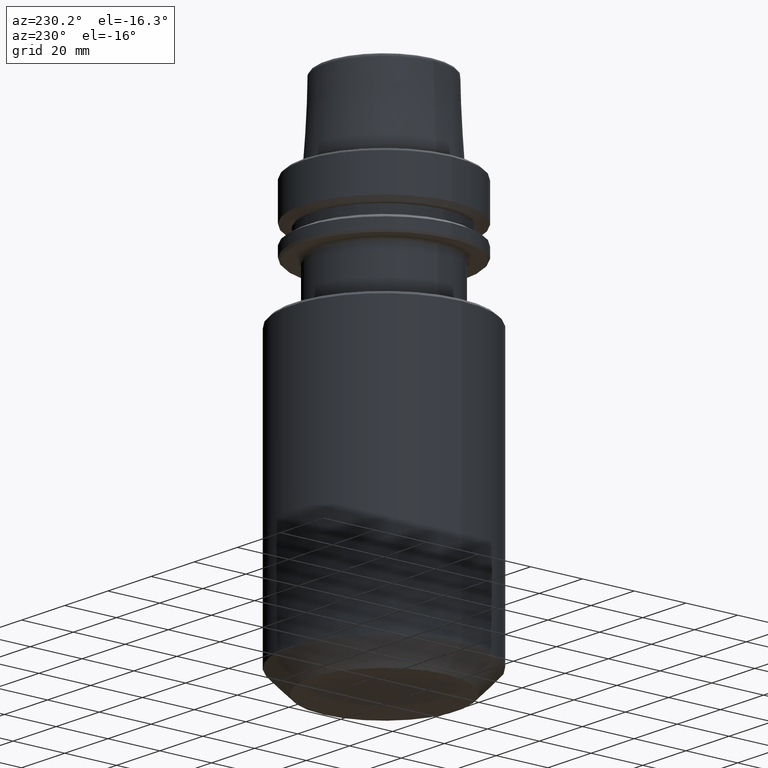
[diagram: clean part render]
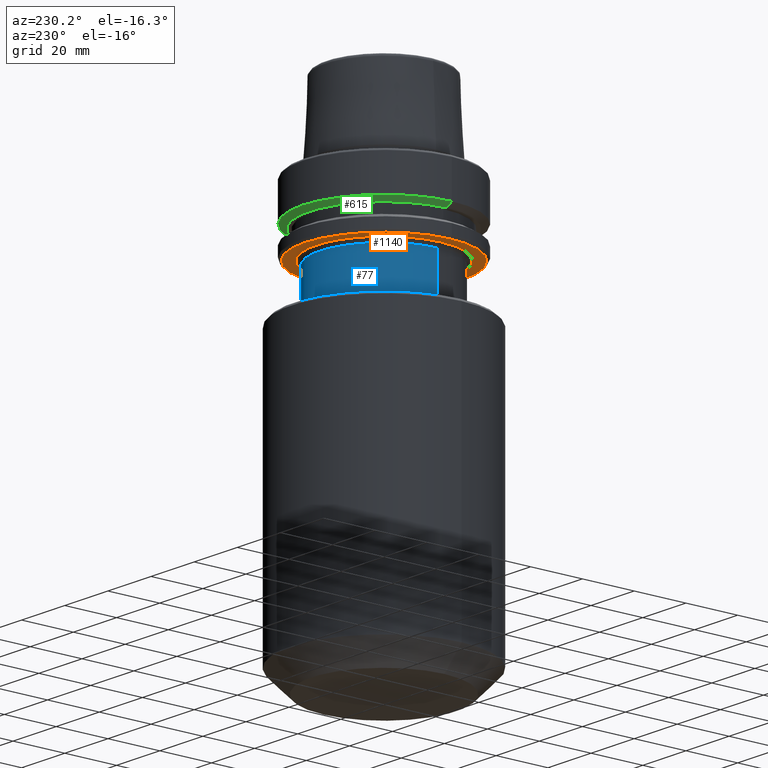
[diagram: same view with three faces highlighted in distinct colors, each labeled with its STEP entity id]
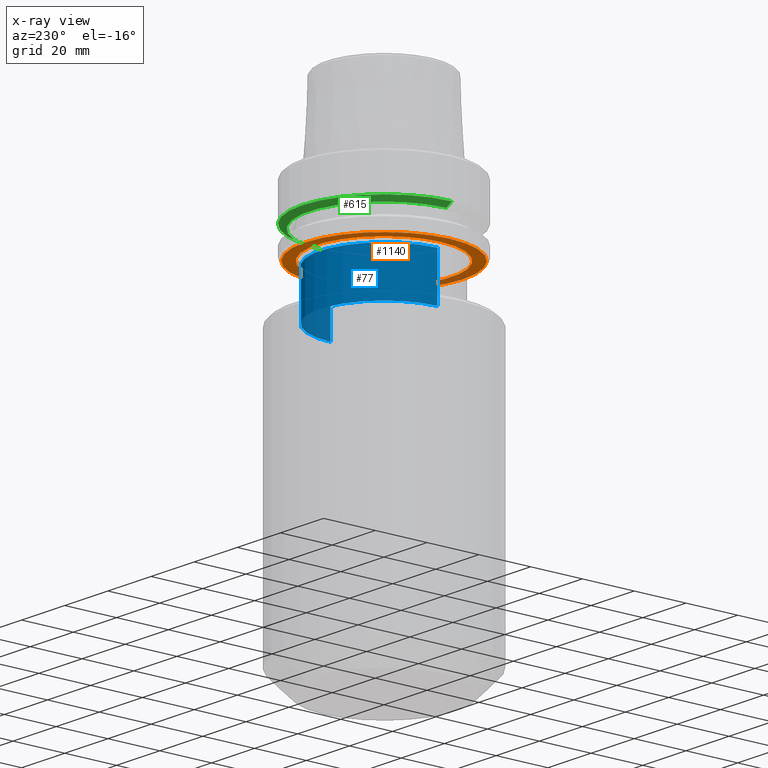
[diagram: x-ray of the same camera — body ghosted, the three highlighted faces saturated]
A machine part, auxiliary view with three faces highlighted in distinct colors.
The next image is the same camera in x-ray (body ghosted, the three faces saturated) — at least one of them is partly hidden behind the body in this view.
Their STEP definitions:

[orange] entity #1140 — the highlighted planar face has unit normal (0, -0, 1).
#28 = AXIS2_PLACEMENT_3D ( 'NONE', #75, #268, #897 ) ;
#75 = CARTESIAN_POINT ( 'NONE',  ( 0.0000000000000000000, 5.595110143410128200, -26.00000000000001100 ) ) ;
#164 = CIRCLE ( 'NONE', #1005, 30.53431457505076800 ) ;
#200 = VERTEX_POINT ( 'NONE', #1365 ) ;
#205 = CARTESIAN_POINT ( 'NONE',  ( -30.53431457505076800, 3.756694181974139400E-015, -26.00000000000001100 ) ) ;
#268 = DIRECTION ( 'NONE',  ( 0.0000000000000000000, -0.0000000000000000000, 1.000000000000000000 ) ) ;
#341 = DIRECTION ( 'NONE',  ( -0.0000000000000000000, -0.0000000000000000000, 1.000000000000000000 ) ) ;
#367 = DIRECTION ( 'NONE',  ( 1.000000000000000000, 0.0000000000000000000, 0.0000000000000000000 ) ) ;
#419 = VERTEX_POINT ( 'NONE', #205 ) ;
#433 = DIRECTION ( 'NONE',  ( -0.0000000000000000000, -0.0000000000000000000, 1.000000000000000000 ) ) ;
#452 = CARTESIAN_POINT ( 'NONE',  ( 0.0000000000000000000, 0.0000000000000000000, -26.00000000000001100 ) ) ;
#459 = EDGE_CURVE ( 'NONE', #812, #419, #164, .T. ) ;
#507 = AXIS2_PLACEMENT_3D ( 'NONE', #1086, #341, #977 ) ;
#509 = EDGE_CURVE ( 'NONE', #419, #812, #1320, .T. ) ;
#525 = EDGE_LOOP ( 'NONE', ( #1084, #994 ) ) ;
#526 = DIRECTION ( 'NONE',  ( 1.000000000000000000, 0.0000000000000000000, 0.0000000000000000000 ) ) ;
#565 = FACE_OUTER_BOUND ( 'NONE', #1203, .T. ) ;
#589 = EDGE_CURVE ( 'NONE', #660, #200, #665, .T. ) ;
#612 = CIRCLE ( 'NONE', #507, 26.25000000000000400 ) ;
#660 = VERTEX_POINT ( 'NONE', #747 ) ;
#665 = CIRCLE ( 'NONE', #1072, 26.25000000000000400 ) ;
#669 = DIRECTION ( 'NONE',  ( -0.0000000000000000000, -0.0000000000000000000, 1.000000000000000000 ) ) ;
#747 = CARTESIAN_POINT ( 'NONE',  ( -26.25000000000000400, 3.214697847761802400E-015, -26.00000000000001100 ) ) ;
#812 = VERTEX_POINT ( 'NONE', #1316 ) ;
#897 = DIRECTION ( 'NONE',  ( 1.000000000000000000, 0.0000000000000000000, 0.0000000000000000000 ) ) ;
#910 = PLANE ( 'NONE',  #28 ) ;
#913 = ORIENTED_EDGE ( 'NONE', *, *, #509, .F. ) ;
#951 = FACE_BOUND ( 'NONE', #525, .T. ) ;
#977 = DIRECTION ( 'NONE',  ( 1.000000000000000000, 0.0000000000000000000, 0.0000000000000000000 ) ) ;
#978 = CARTESIAN_POINT ( 'NONE',  ( 0.0000000000000000000, 0.0000000000000000000, -26.00000000000001100 ) ) ;
#994 = ORIENTED_EDGE ( 'NONE', *, *, #589, .T. ) ;
#1005 = AXIS2_PLACEMENT_3D ( 'NONE', #978, #1085, #1080 ) ;
#1061 = CARTESIAN_POINT ( 'NONE',  ( 0.0000000000000000000, 0.0000000000000000000, -26.00000000000001100 ) ) ;
#1072 = AXIS2_PLACEMENT_3D ( 'NONE', #1061, #433, #526 ) ;
#1080 = DIRECTION ( 'NONE',  ( 1.000000000000000000, 0.0000000000000000000, 0.0000000000000000000 ) ) ;
#1084 = ORIENTED_EDGE ( 'NONE', *, *, #1324, .T. ) ;
#1085 = DIRECTION ( 'NONE',  ( -0.0000000000000000000, -0.0000000000000000000, 1.000000000000000000 ) ) ;
#1086 = CARTESIAN_POINT ( 'NONE',  ( 0.0000000000000000000, 0.0000000000000000000, -26.00000000000001100 ) ) ;
#1140 = ADVANCED_FACE ( 'NONE', ( #951, #565 ), #910, .F. ) ;
#1203 = EDGE_LOOP ( 'NONE', ( #1284, #913 ) ) ;
#1237 = AXIS2_PLACEMENT_3D ( 'NONE', #452, #669, #367 ) ;
#1284 = ORIENTED_EDGE ( 'NONE', *, *, #459, .F. ) ;
#1316 = CARTESIAN_POINT ( 'NONE',  ( 30.53431457505076800, 0.0000000000000000000, -26.00000000000001100 ) ) ;
#1320 = CIRCLE ( 'NONE', #1237, 30.53431457505076800 ) ;
#1324 = EDGE_CURVE ( 'NONE', #200, #660, #612, .T. ) ;
#1365 = CARTESIAN_POINT ( 'NONE',  ( 26.25000000000000400, 0.0000000000000000000, -26.00000000000001100 ) ) ;

[blue] entity #77 — the highlighted cylindrical surface (partial cylindrical patch) has radius 24.75 mm, axis along (-0, -0, 1).
#58 = VECTOR ( 'NONE', #448, 1000.000000000000000 ) ;
#77 = ADVANCED_FACE ( 'NONE', ( #86 ), #116, .T. ) ;
#86 = FACE_OUTER_BOUND ( 'NONE', #1205, .T. ) ;
#110 = CARTESIAN_POINT ( 'NONE',  ( -24.75000000000000000, 3.031000827889699300E-015, -27.50000000000001100 ) ) ;
#116 = CYLINDRICAL_SURFACE ( 'NONE', #671, 24.75000000000000000 ) ;
#137 = DIRECTION ( 'NONE',  ( -0.0000000000000000000, -0.0000000000000000000, 1.000000000000000000 ) ) ;
#142 = CARTESIAN_POINT ( 'NONE',  ( 24.75000000000000000, 0.0000000000000000000, -27.50000000000001100 ) ) ;
#211 = AXIS2_PLACEMENT_3D ( 'NONE', #672, #836, #567 ) ;
#221 = LINE ( 'NONE', #729, #711 ) ;
#267 = CARTESIAN_POINT ( 'NONE',  ( 24.75000000000000000, 0.0000000000000000000, -45.50000000000001400 ) ) ;
#298 = CIRCLE ( 'NONE', #1023, 24.75000000000000000 ) ;
#316 = EDGE_CURVE ( 'NONE', #799, #891, #1090, .T. ) ;
#395 = DIRECTION ( 'NONE',  ( 1.000000000000000000, 0.0000000000000000000, 0.0000000000000000000 ) ) ;
#422 = VERTEX_POINT ( 'NONE', #267 ) ;
#448 = DIRECTION ( 'NONE',  ( -0.0000000000000000000, -0.0000000000000000000, 1.000000000000000000 ) ) ;
#514 = DIRECTION ( 'NONE',  ( 1.000000000000000000, 0.0000000000000000000, 0.0000000000000000000 ) ) ;
#528 = ORIENTED_EDGE ( 'NONE', *, *, #534, .T. ) ;
#530 = CIRCLE ( 'NONE', #211, 24.75000000000000000 ) ;
#534 = EDGE_CURVE ( 'NONE', #422, #799, #530, .T. ) ;
#567 = DIRECTION ( 'NONE',  ( 1.000000000000000000, 0.0000000000000000000, 0.0000000000000000000 ) ) ;
#622 = CARTESIAN_POINT ( 'NONE',  ( 0.0000000000000000000, 0.0000000000000000000, -27.50000000000001100 ) ) ;
#671 = AXIS2_PLACEMENT_3D ( 'NONE', #1327, #137, #395 ) ;
#672 = CARTESIAN_POINT ( 'NONE',  ( 0.0000000000000000000, 0.0000000000000000000, -45.50000000000001400 ) ) ;
#711 = VECTOR ( 'NONE', #1045, 1000.000000000000000 ) ;
#722 = ORIENTED_EDGE ( 'NONE', *, *, #316, .T. ) ;
#729 = CARTESIAN_POINT ( 'NONE',  ( 24.75000000000000000, 0.0000000000000000000, 31.31059451800105700 ) ) ;
#799 = VERTEX_POINT ( 'NONE', #1325 ) ;
#836 = DIRECTION ( 'NONE',  ( -0.0000000000000000000, -0.0000000000000000000, 1.000000000000000000 ) ) ;
#891 = VERTEX_POINT ( 'NONE', #110 ) ;
#925 = EDGE_CURVE ( 'NONE', #422, #1357, #221, .T. ) ;
#991 = EDGE_CURVE ( 'NONE', #891, #1357, #298, .T. ) ;
#1021 = CARTESIAN_POINT ( 'NONE',  ( -24.75000000000000000, 3.031000827889699300E-015, 31.31059451800105700 ) ) ;
#1023 = AXIS2_PLACEMENT_3D ( 'NONE', #622, #1277, #514 ) ;
#1045 = DIRECTION ( 'NONE',  ( -0.0000000000000000000, -0.0000000000000000000, 1.000000000000000000 ) ) ;
#1090 = LINE ( 'NONE', #1021, #58 ) ;
#1149 = ORIENTED_EDGE ( 'NONE', *, *, #925, .F. ) ;
#1205 = EDGE_LOOP ( 'NONE', ( #528, #722, #1206, #1149 ) ) ;
#1206 = ORIENTED_EDGE ( 'NONE', *, *, #991, .T. ) ;
#1277 = DIRECTION ( 'NONE',  ( 0.0000000000000000000, 0.0000000000000000000, -1.000000000000000000 ) ) ;
#1325 = CARTESIAN_POINT ( 'NONE',  ( -24.75000000000000000, 3.031000827889699300E-015, -45.50000000000001400 ) ) ;
#1327 = CARTESIAN_POINT ( 'NONE',  ( 0.0000000000000000000, 0.0000000000000000000, 31.31059451800105700 ) ) ;
#1357 = VERTEX_POINT ( 'NONE', #142 ) ;

[green] entity #615 — the highlighted conical surface has half-angle 60 deg.
#26 = VECTOR ( 'NONE', #1004, 1000.000000000000000 ) ;
#40 = LINE ( 'NONE', #472, #26 ) ;
#43 = CIRCLE ( 'NONE', #227, 31.50000000000000000 ) ;
#91 = LINE ( 'NONE', #695, #877 ) ;
#114 = ORIENTED_EDGE ( 'NONE', *, *, #1131, .F. ) ;
#159 = ORIENTED_EDGE ( 'NONE', *, *, #232, .T. ) ;
#227 = AXIS2_PLACEMENT_3D ( 'NONE', #414, #1348, #1039 ) ;
#229 = AXIS2_PLACEMENT_3D ( 'NONE', #375, #1007, #277 ) ;
#232 = EDGE_CURVE ( 'NONE', #285, #1065, #40, .T. ) ;
#245 = CARTESIAN_POINT ( 'NONE',  ( 28.94089653438085100, 0.0000000000000000000, -16.10000000000001600 ) ) ;
#277 = DIRECTION ( 'NONE',  ( 1.000000000000000000, 0.0000000000000000000, 0.0000000000000000000 ) ) ;
#285 = VERTEX_POINT ( 'NONE', #466 ) ;
#375 = CARTESIAN_POINT ( 'NONE',  ( 0.0000000000000000000, 0.0000000000000000000, -16.10000000000001600 ) ) ;
#390 = CARTESIAN_POINT ( 'NONE',  ( -31.50000000000000000, 3.857637417314162700E-015, -14.62250092524070100 ) ) ;
#414 = CARTESIAN_POINT ( 'NONE',  ( 0.0000000000000000000, 0.0000000000000000000, -14.62250092524070100 ) ) ;
#446 = CARTESIAN_POINT ( 'NONE',  ( 31.50000000000000000, 0.0000000000000000000, -14.62250092524070100 ) ) ;
#466 = CARTESIAN_POINT ( 'NONE',  ( -28.94089653438085100, 3.700937523921292900E-015, -16.10000000000001600 ) ) ;
#469 = CARTESIAN_POINT ( 'NONE',  ( 0.0000000000000000000, 0.0000000000000000000, -16.10000000000001600 ) ) ;
#472 = CARTESIAN_POINT ( 'NONE',  ( -28.94089653438085100, 3.544237630528423800E-015, -16.10000000000001600 ) ) ;
#615 = ADVANCED_FACE ( 'NONE', ( #1014 ), #967, .T. ) ;
#694 = EDGE_CURVE ( 'NONE', #1373, #1065, #43, .T. ) ;
#695 = CARTESIAN_POINT ( 'NONE',  ( 28.94089653438085100, 0.0000000000000000000, -16.10000000000001600 ) ) ;
#728 = CIRCLE ( 'NONE', #229, 28.94089653438085100 ) ;
#831 = EDGE_LOOP ( 'NONE', ( #1212, #159, #1282, #114 ) ) ;
#877 = VECTOR ( 'NONE', #1356, 1000.000000000000000 ) ;
#967 = CONICAL_SURFACE ( 'NONE', #1138, 28.94089653438085100, 1.047197551196598300 ) ;
#1004 = DIRECTION ( 'NONE',  ( -0.8660254037844389300, 1.060575238724907300E-016, 0.4999999999999995000 ) ) ;
#1007 = DIRECTION ( 'NONE',  ( -0.0000000000000000000, -0.0000000000000000000, 1.000000000000000000 ) ) ;
#1014 = FACE_OUTER_BOUND ( 'NONE', #831, .T. ) ;
#1039 = DIRECTION ( 'NONE',  ( 1.000000000000000000, 0.0000000000000000000, 0.0000000000000000000 ) ) ;
#1041 = DIRECTION ( 'NONE',  ( -0.0000000000000000000, -0.0000000000000000000, 1.000000000000000000 ) ) ;
#1065 = VERTEX_POINT ( 'NONE', #390 ) ;
#1106 = EDGE_CURVE ( 'NONE', #1278, #285, #728, .T. ) ;
#1131 = EDGE_CURVE ( 'NONE', #1278, #1373, #91, .T. ) ;
#1138 = AXIS2_PLACEMENT_3D ( 'NONE', #469, #1041, #1311 ) ;
#1212 = ORIENTED_EDGE ( 'NONE', *, *, #1106, .T. ) ;
#1278 = VERTEX_POINT ( 'NONE', #245 ) ;
#1282 = ORIENTED_EDGE ( 'NONE', *, *, #694, .F. ) ;
#1311 = DIRECTION ( 'NONE',  ( 1.000000000000000000, 0.0000000000000000000, 0.0000000000000000000 ) ) ;
#1348 = DIRECTION ( 'NONE',  ( -0.0000000000000000000, -0.0000000000000000000, 1.000000000000000000 ) ) ;
#1356 = DIRECTION ( 'NONE',  ( 0.8660254037844389300, 0.0000000000000000000, 0.4999999999999995000 ) ) ;
#1373 = VERTEX_POINT ( 'NONE', #446 ) ;